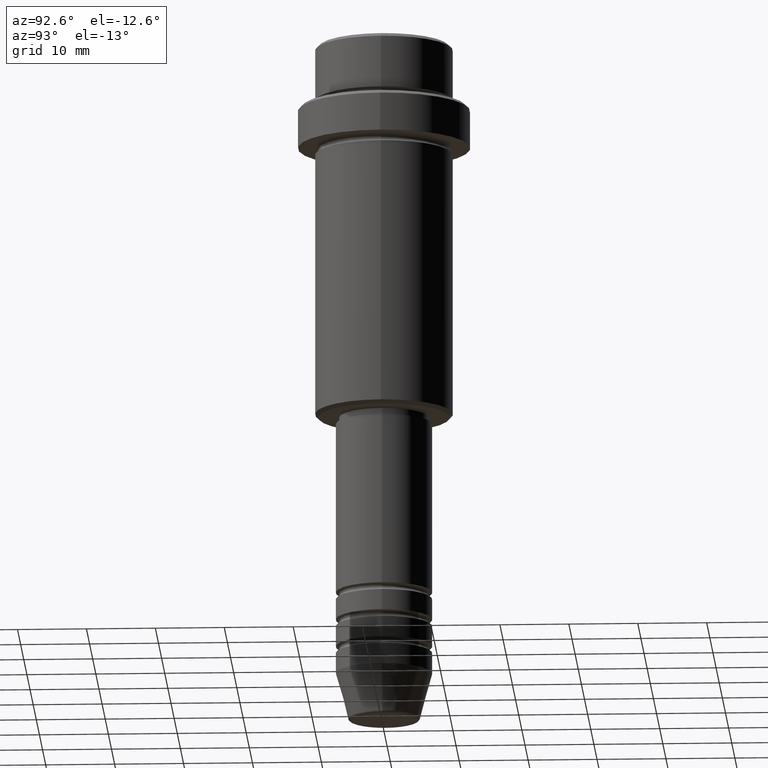
[diagram: clean part render]
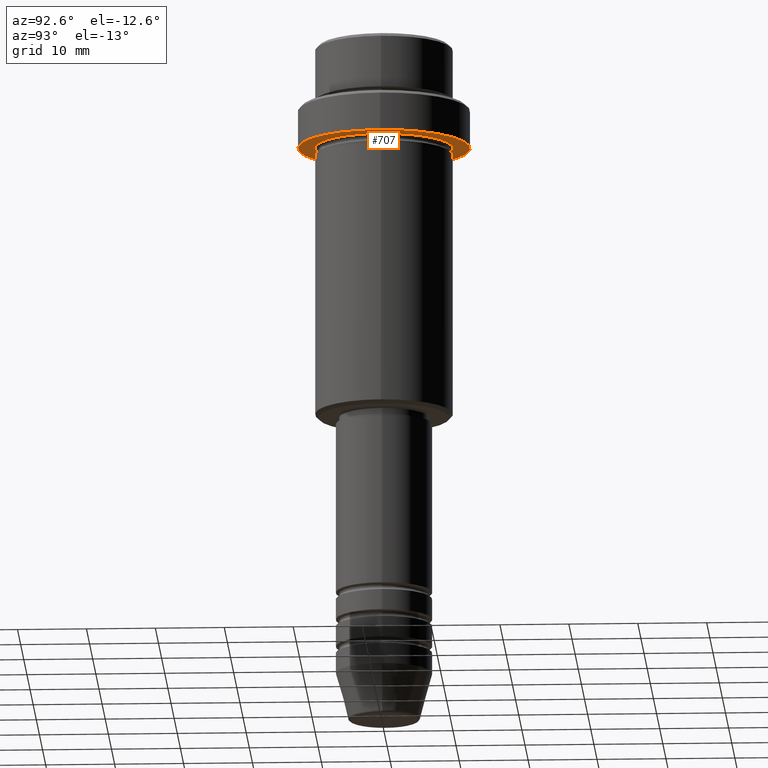
[diagram: same view with one face highlighted and labeled with its STEP entity id]
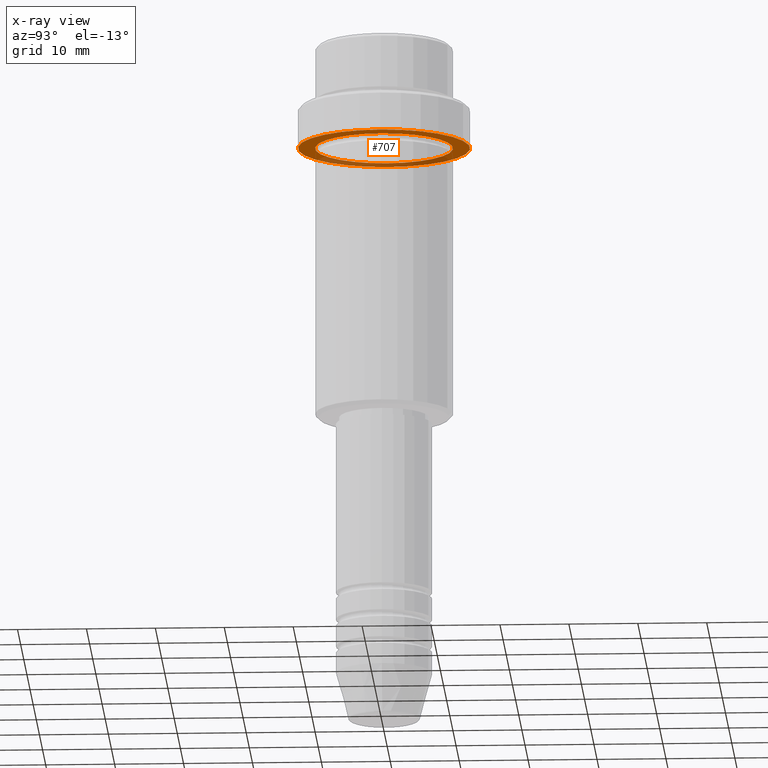
[diagram: x-ray of the same camera — body ghosted, the highlighted face saturated]
A machine part, auxiliary view. The second image highlights one B-rep face of the part: STEP entity #707.
The next image is the same camera in x-ray: the body ghosted, the highlighted face saturated — about 30% of this face is hidden behind the body in this view.
In plain terms, the highlighted planar face has unit normal (0, 0, -1).
Its self-contained STEP definition (entity closure, byte-faithful):
#4 = DIRECTION ( 'NONE',  ( -0.000000000000000000, -0.000000000000000000, 1.000000000000000000 ) ) ;
#11 = AXIS2_PLACEMENT_3D ( 'NONE', #1241, #747, #86 ) ;
#86 = DIRECTION ( 'NONE',  ( -1.000000000000000000, 0.000000000000000000, -0.000000000000000000 ) ) ;
#138 = DIRECTION ( 'NONE',  ( -0.000000000000000000, -0.000000000000000000, 1.000000000000000000 ) ) ;
#150 = EDGE_CURVE ( 'NONE', #688, #650, #374, .T. ) ;
#153 = AXIS2_PLACEMENT_3D ( 'NONE', #408, #1180, #518 ) ;
#166 = ORIENTED_EDGE ( 'NONE', *, *, #365, .T. ) ;
#167 = EDGE_CURVE ( 'NONE', #1201, #182, #172, .T. ) ;
#172 = CIRCLE ( 'NONE', #1337, 12.50000000000000000 ) ;
#182 = VERTEX_POINT ( 'NONE', #476 ) ;
#232 = DIRECTION ( 'NONE',  ( 1.000000000000000000, 0.000000000000000000, 0.000000000000000000 ) ) ;
#236 = AXIS2_PLACEMENT_3D ( 'NONE', #982, #4, #1321 ) ;
#286 = ORIENTED_EDGE ( 'NONE', *, *, #150, .T. ) ;
#333 = CARTESIAN_POINT ( 'NONE',  ( 12.50000000000000000, 0.000000000000000000, -15.00000000000000000 ) ) ;
#339 = EDGE_LOOP ( 'NONE', ( #1232, #1112 ) ) ;
#341 = EDGE_LOOP ( 'NONE', ( #166, #286 ) ) ;
#360 = FACE_OUTER_BOUND ( 'NONE', #339, .T. ) ;
#365 = EDGE_CURVE ( 'NONE', #650, #688, #396, .T. ) ;
#374 = CIRCLE ( 'NONE', #668, 9.999999999999992895 ) ;
#396 = CIRCLE ( 'NONE', #236, 9.999999999999992895 ) ;
#408 = CARTESIAN_POINT ( 'NONE',  ( 0.000000000000000000, 0.000000000000000000, -15.00000000000000000 ) ) ;
#476 = CARTESIAN_POINT ( 'NONE',  ( -12.50000000000000000, 1.530808498934191521E-15, -15.00000000000000000 ) ) ;
#518 = DIRECTION ( 'NONE',  ( 1.000000000000000000, 0.000000000000000000, 0.000000000000000000 ) ) ;
#546 = CARTESIAN_POINT ( 'NONE',  ( -9.999999999999992895, 0.000000000000000000, -15.00000000000000000 ) ) ;
#650 = VERTEX_POINT ( 'NONE', #546 ) ;
#668 = AXIS2_PLACEMENT_3D ( 'NONE', #1109, #1231, #1002 ) ;
#688 = VERTEX_POINT ( 'NONE', #788 ) ;
#707 = ADVANCED_FACE ( 'NONE', ( #899, #360 ), #794, .T. ) ;
#747 = DIRECTION ( 'NONE',  ( 0.000000000000000000, 0.000000000000000000, -1.000000000000000000 ) ) ;
#788 = CARTESIAN_POINT ( 'NONE',  ( 9.999999999999992895, 1.224646799147352468E-15, -15.00000000000000000 ) ) ;
#794 = PLANE ( 'NONE',  #11 ) ;
#893 = CARTESIAN_POINT ( 'NONE',  ( 0.000000000000000000, 0.000000000000000000, -15.00000000000000000 ) ) ;
#899 = FACE_BOUND ( 'NONE', #341, .T. ) ;
#958 = EDGE_CURVE ( 'NONE', #182, #1201, #1081, .T. ) ;
#982 = CARTESIAN_POINT ( 'NONE',  ( 0.000000000000000000, 0.000000000000000000, -15.00000000000000000 ) ) ;
#1002 = DIRECTION ( 'NONE',  ( -1.000000000000000000, 0.000000000000000000, 0.000000000000000000 ) ) ;
#1081 = CIRCLE ( 'NONE', #153, 12.50000000000000000 ) ;
#1109 = CARTESIAN_POINT ( 'NONE',  ( 0.000000000000000000, 0.000000000000000000, -15.00000000000000000 ) ) ;
#1112 = ORIENTED_EDGE ( 'NONE', *, *, #958, .F. ) ;
#1180 = DIRECTION ( 'NONE',  ( -0.000000000000000000, -0.000000000000000000, 1.000000000000000000 ) ) ;
#1201 = VERTEX_POINT ( 'NONE', #333 ) ;
#1231 = DIRECTION ( 'NONE',  ( -0.000000000000000000, -0.000000000000000000, 1.000000000000000000 ) ) ;
#1232 = ORIENTED_EDGE ( 'NONE', *, *, #167, .F. ) ;
#1241 = CARTESIAN_POINT ( 'NONE',  ( 0.000000000000000000, 12.50000000000000000, -15.00000000000000000 ) ) ;
#1321 = DIRECTION ( 'NONE',  ( -1.000000000000000000, 0.000000000000000000, 0.000000000000000000 ) ) ;
#1337 = AXIS2_PLACEMENT_3D ( 'NONE', #893, #138, #232 ) ;